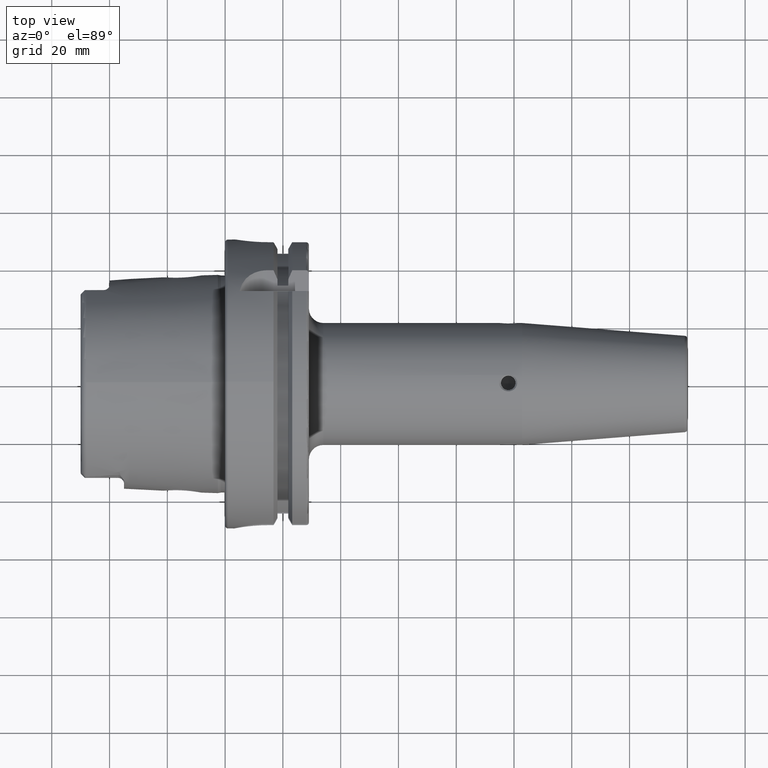
[diagram: clean part render]
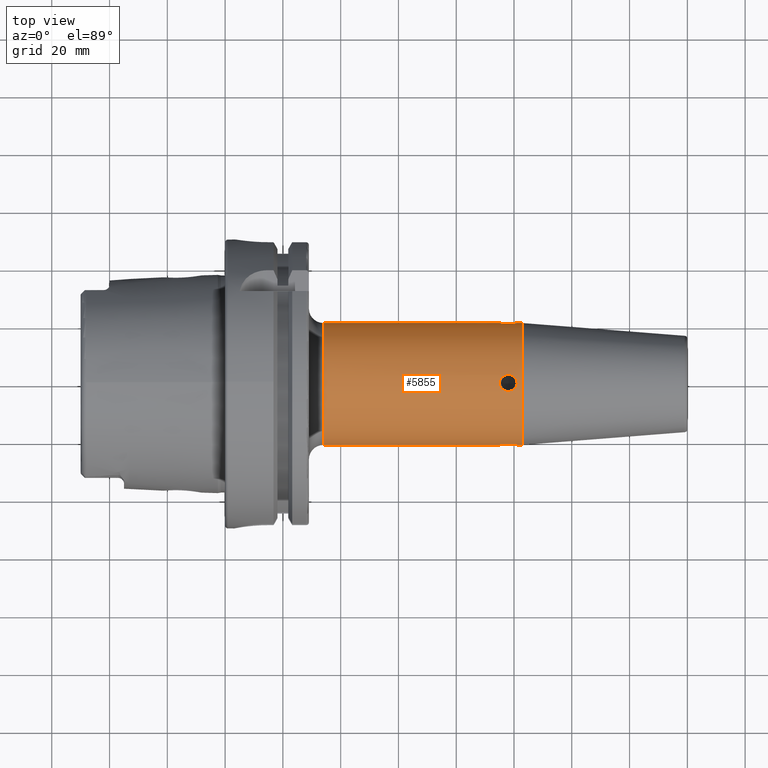
[diagram: same view with one face highlighted and labeled with its STEP entity id]
A machine part, top view. The second image highlights one B-rep face of the part: STEP entity #5855.
In plain terms, the highlighted cylindrical surface (partial cylindrical patch) has radius 21.1097 mm, axis along (1, 0, 0).
Its self-contained STEP definition (entity closure, byte-faithful):
#2306=CARTESIAN_POINT('',(9.49E1,-2.110969713780E1,0.E0));
#2307=CARTESIAN_POINT('',(9.49E1,-2.110969713780E1,2.680097949539E-1));
#2308=CARTESIAN_POINT('',(9.497549426287E1,-2.109983036718E1,
7.868645652452E-1));
#2309=CARTESIAN_POINT('',(9.533129315992E1,-2.105678309211E1,1.549732091921E0));
#2310=CARTESIAN_POINT('',(9.590077226356E1,-2.099875502884E1,2.185265254494E0));
#2311=CARTESIAN_POINT('',(9.665505210762E1,-2.094266870073E1,2.658659602811E0));
#2312=CARTESIAN_POINT('',(9.754230935416E1,-2.090811307897E1,2.910655285170E0));
#2313=CARTESIAN_POINT('',(9.846004824873E1,-2.090809785070E1,2.910838814606E0));
#2314=CARTESIAN_POINT('',(9.935218386893E1,-2.094307716063E1,2.655464032145E0));
#2315=CARTESIAN_POINT('',(1.001018951430E2,-2.099902183731E1,2.182793324612E0));
#2316=CARTESIAN_POINT('',(1.006715873953E2,-2.105710118299E1,1.545350468478E0));
#2317=CARTESIAN_POINT('',(1.010245913190E2,-2.109985162219E1,
7.853436816405E-1));
#2318=CARTESIAN_POINT('',(1.011E2,-2.110969713780E1,2.674339564808E-1));
#2319=CARTESIAN_POINT('',(1.011E2,-2.110969713780E1,0.E0));
#2321=CARTESIAN_POINT('',(1.011E2,2.110969713780E1,0.E0));
#2322=CARTESIAN_POINT('',(1.011E2,2.110969713780E1,2.676781250793E-1));
#2323=CARTESIAN_POINT('',(1.010244374361E2,2.109983121534E1,7.858964017838E-1));
#2324=CARTESIAN_POINT('',(1.006713659990E2,2.105707880415E1,1.545577705845E0));
#2325=CARTESIAN_POINT('',(1.001020591708E2,2.099903602537E1,2.182653356406E0));
#2326=CARTESIAN_POINT('',(9.935208674872E1,2.094307194510E1,2.655512579609E0));
#2327=CARTESIAN_POINT('',(9.846019295358E1,2.090810008902E1,2.910820066234E0));
#2328=CARTESIAN_POINT('',(9.754216389131E1,2.090811577582E1,2.910634813226E0));
#2329=CARTESIAN_POINT('',(9.665520222239E1,2.094266112973E1,2.658720471931E0));
#2330=CARTESIAN_POINT('',(9.590065978707E1,2.099876364542E1,2.185193812347E0));
#2331=CARTESIAN_POINT('',(9.533142197494E1,2.105677093944E1,1.549813548524E0));
#2332=CARTESIAN_POINT('',(9.497570241707E1,2.109980361017E1,7.875295899625E-1));
#2333=CARTESIAN_POINT('',(9.49E1,2.110969713780E1,2.683003601252E-1));
#2334=CARTESIAN_POINT('',(9.49E1,2.110969713780E1,0.E0));
#2336=CARTESIAN_POINT('',(1.028220786872E2,0.E0,0.E0));
#2337=DIRECTION('',(1.E0,0.E0,0.E0));
#2338=DIRECTION('',(0.E0,1.E0,0.E0));
#2339=AXIS2_PLACEMENT_3D('',#2336,#2337,#2338);
#2341=CARTESIAN_POINT('',(1.011E2,-1.136788147747E-14,2.110969713780E1));
#2342=CARTESIAN_POINT('',(1.011E2,-2.997406104285E-1,2.110969713780E1));
#2343=CARTESIAN_POINT('',(1.010055711233E2,-8.730717692485E-1,
2.109731532502E1));
#2344=CARTESIAN_POINT('',(1.005786231085E2,-1.691534288142E0,2.104637196159E1));
#2345=CARTESIAN_POINT('',(9.989775884868E1,-2.353186953545E0,2.098060127206E1));
#2346=CARTESIAN_POINT('',(9.900208087203E1,-2.797869763090E0,2.092413558026E1));
#2347=CARTESIAN_POINT('',(9.799984634810E1,-2.951170768872E0,2.090224423023E1));
#2348=CARTESIAN_POINT('',(9.699405740998E1,-2.796675392936E0,2.092429913294E1));
#2349=CARTESIAN_POINT('',(9.610349899564E1,-2.353403636396E0,2.098054607362E1));
#2350=CARTESIAN_POINT('',(9.542147082779E1,-1.692751270374E0,2.104633099075E1));
#2351=CARTESIAN_POINT('',(9.499216615604E1,-8.671497148074E-1,
2.109760067865E1));
#2352=CARTESIAN_POINT('',(9.49E1,-2.971636893518E-1,2.110969713780E1));
#2353=CARTESIAN_POINT('',(9.49E1,-1.605517583852E-14,2.110969713780E1));
#2355=CARTESIAN_POINT('',(9.49E1,-1.605517583852E-14,2.110969713780E1));
#2356=CARTESIAN_POINT('',(9.49E1,2.390637544906E-1,2.110969713780E1));
#2357=CARTESIAN_POINT('',(9.496079686965E1,7.029492245054E-1,2.110179286209E1));
#2358=CARTESIAN_POINT('',(9.523945301585E1,1.382338897585E0,2.106766500102E1));
#2359=CARTESIAN_POINT('',(9.568080183442E1,1.963784854711E0,2.102026603452E1));
#2360=CARTESIAN_POINT('',(9.623206084545E1,2.411268225532E0,2.097264883062E1));
#2361=CARTESIAN_POINT('',(9.685137022406E1,2.719204772983E0,2.093428913010E1));
#2362=CARTESIAN_POINT('',(9.755108149884E1,2.898600722546E0,2.090980461204E1));
#2363=CARTESIAN_POINT('',(9.836711232814E1,2.917196317995E0,2.090714699103E1));
#2364=CARTESIAN_POINT('',(9.924566632656E1,2.701870826568E0,2.093697570712E1));
#2365=CARTESIAN_POINT('',(1.000401943798E2,2.237790987961E0,2.099324825467E1));
#2366=CARTESIAN_POINT('',(1.006438137485E2,1.590988561809E0,2.105387974965E1));
#2367=CARTESIAN_POINT('',(1.010193807573E2,8.112748316456E-1,2.109915146206E1));
#2368=CARTESIAN_POINT('',(1.011E2,2.768277868188E-1,2.110969713780E1));
#2369=CARTESIAN_POINT('',(1.011E2,-1.136788147747E-14,2.110969713780E1));
#2404=DIRECTION('',(-1.E0,0.E0,0.E0));
#2405=VECTOR('',#2404,1.722078687214E0);
#2406=CARTESIAN_POINT('',(1.028220786872E2,-2.110969713780E1,0.E0));
#2407=LINE('',#2406,#2405);
#2413=DIRECTION('',(-1.E0,0.E0,0.E0));
#2414=VECTOR('',#2413,1.722078687214E0);
#2415=CARTESIAN_POINT('',(1.028220786872E2,2.110969713780E1,0.E0));
#2416=LINE('',#2415,#2414);
#2432=DIRECTION('',(-1.E0,0.E0,0.E0));
#2433=VECTOR('',#2432,6.09E1);
#2434=CARTESIAN_POINT('',(9.49E1,2.110969713780E1,0.E0));
#2435=LINE('',#2434,#2433);
#2436=DIRECTION('',(-1.E0,0.E0,0.E0));
#2437=VECTOR('',#2436,6.09E1);
#2438=CARTESIAN_POINT('',(9.49E1,-2.110969713780E1,0.E0));
#2439=LINE('',#2438,#2437);
#2529=CARTESIAN_POINT('',(3.4E1,0.E0,0.E0));
#2530=DIRECTION('',(1.E0,0.E0,0.E0));
#2531=DIRECTION('',(0.E0,1.E0,0.E0));
#2532=AXIS2_PLACEMENT_3D('',#2529,#2530,#2531);
#3181=CARTESIAN_POINT('',(1.028220786872E2,2.110969713780E1,0.E0));
#3182=VERTEX_POINT('',#3181);
#3209=CARTESIAN_POINT('',(1.028220786872E2,-2.110969713780E1,0.E0));
#3210=VERTEX_POINT('',#3209);
#3211=CARTESIAN_POINT('',(3.4E1,2.110969713780E1,0.E0));
#3212=CARTESIAN_POINT('',(3.4E1,-2.110969713780E1,0.E0));
#3213=VERTEX_POINT('',#3211);
#3214=VERTEX_POINT('',#3212);
#3241=VERTEX_POINT('',#2321);
#3242=VERTEX_POINT('',#2334);
#3253=CARTESIAN_POINT('',(1.011E2,-2.110969713780E1,0.E0));
#3254=VERTEX_POINT('',#3253);
#3255=CARTESIAN_POINT('',(9.49E1,-2.110969713780E1,0.E0));
#3256=VERTEX_POINT('',#3255);
#3267=VERTEX_POINT('',#2341);
#3268=VERTEX_POINT('',#2353);
#5827=CARTESIAN_POINT('',(2.245E1,0.E0,0.E0));
#5828=DIRECTION('',(1.E0,0.E0,0.E0));
#5829=DIRECTION('',(0.E0,-1.E0,0.E0));
#5830=AXIS2_PLACEMENT_3D('',#5827,#5828,#5829);
#5831=CYLINDRICAL_SURFACE('',#5830,2.110969713780E1);
#5833=ORIENTED_EDGE('',*,*,#5832,.F.);
#5835=ORIENTED_EDGE('',*,*,#5834,.T.);
#5837=ORIENTED_EDGE('',*,*,#5836,.F.);
#5839=ORIENTED_EDGE('',*,*,#5838,.F.);
#5841=ORIENTED_EDGE('',*,*,#5840,.F.);
#5843=ORIENTED_EDGE('',*,*,#5842,.F.);
#5844=ORIENTED_EDGE('',*,*,#5822,.T.);
#5846=ORIENTED_EDGE('',*,*,#5845,.T.);
#5847=EDGE_LOOP('',(#5833,#5835,#5837,#5839,#5841,#5843,#5844,#5846));
#5848=FACE_OUTER_BOUND('',#5847,.F.);
#5850=ORIENTED_EDGE('',*,*,#5849,.F.);
#5852=ORIENTED_EDGE('',*,*,#5851,.F.);
#5853=EDGE_LOOP('',(#5850,#5852));
#5854=FACE_BOUND('',#5853,.F.);
#5855=ADVANCED_FACE('',(#5848,#5854),#5831,.T.);
#2320=B_SPLINE_CURVE_WITH_KNOTS('',3,(#2306,#2307,#2308,#2309,#2310,#2311,#2312,
#2313,#2314,#2315,#2316,#2317,#2318,#2319),.UNSPECIFIED.,.F.,.F.,(4,1,1,1,1,1,1,
1,1,1,1,4),(0.E0,9.090909090909E-2,1.818181818182E-1,2.727272727273E-1,
3.636363636364E-1,4.545454545455E-1,5.454545454545E-1,6.363636363636E-1,
7.272727272727E-1,8.181818181818E-1,9.090909090909E-1,1.E0),.UNSPECIFIED.);
#2335=B_SPLINE_CURVE_WITH_KNOTS('',3,(#2321,#2322,#2323,#2324,#2325,#2326,#2327,
#2328,#2329,#2330,#2331,#2332,#2333,#2334),.UNSPECIFIED.,.F.,.F.,(4,1,1,1,1,1,1,
1,1,1,1,4),(0.E0,9.090909090909E-2,1.818181818182E-1,2.727272727273E-1,
3.636363636364E-1,4.545454545455E-1,5.454545454545E-1,6.363636363636E-1,
7.272727272727E-1,8.181818181818E-1,9.090909090909E-1,1.E0),.UNSPECIFIED.);
#2340=CIRCLE('',#2339,2.110969713780E1);
#2354=B_SPLINE_CURVE_WITH_KNOTS('',3,(#2341,#2342,#2343,#2344,#2345,#2346,#2347,
#2348,#2349,#2350,#2351,#2352,#2353),.UNSPECIFIED.,.F.,.F.,(4,1,1,1,1,1,1,1,1,1,
4),(0.E0,1.E-1,2.E-1,3.E-1,4.E-1,5.E-1,6.E-1,7.E-1,8.E-1,9.E-1,1.E0),
.UNSPECIFIED.);
#2370=B_SPLINE_CURVE_WITH_KNOTS('',3,(#2355,#2356,#2357,#2358,#2359,#2360,#2361,
#2362,#2363,#2364,#2365,#2366,#2367,#2368,#2369),.UNSPECIFIED.,.F.,.F.,(4,1,1,1,
1,1,1,1,1,1,1,1,4),(0.E0,8.333333333333E-2,1.666666666667E-1,2.5E-1,
3.333333333333E-1,4.166666666667E-1,5.E-1,5.833333333333E-1,6.666666666667E-1,
7.5E-1,8.333333333333E-1,9.166666666667E-1,1.E0),.UNSPECIFIED.);
#2533=CIRCLE('',#2532,2.110969713780E1);
#5822=EDGE_CURVE('',#3182,#3210,#2340,.T.);
#5832=EDGE_CURVE('',#3256,#3254,#2320,.T.);
#5834=EDGE_CURVE('',#3256,#3214,#2439,.T.);
#5836=EDGE_CURVE('',#3213,#3214,#2533,.T.);
#5838=EDGE_CURVE('',#3242,#3213,#2435,.T.);
#5840=EDGE_CURVE('',#3241,#3242,#2335,.T.);
#5842=EDGE_CURVE('',#3182,#3241,#2416,.T.);
#5845=EDGE_CURVE('',#3210,#3254,#2407,.T.);
#5849=EDGE_CURVE('',#3267,#3268,#2354,.T.);
#5851=EDGE_CURVE('',#3268,#3267,#2370,.T.);